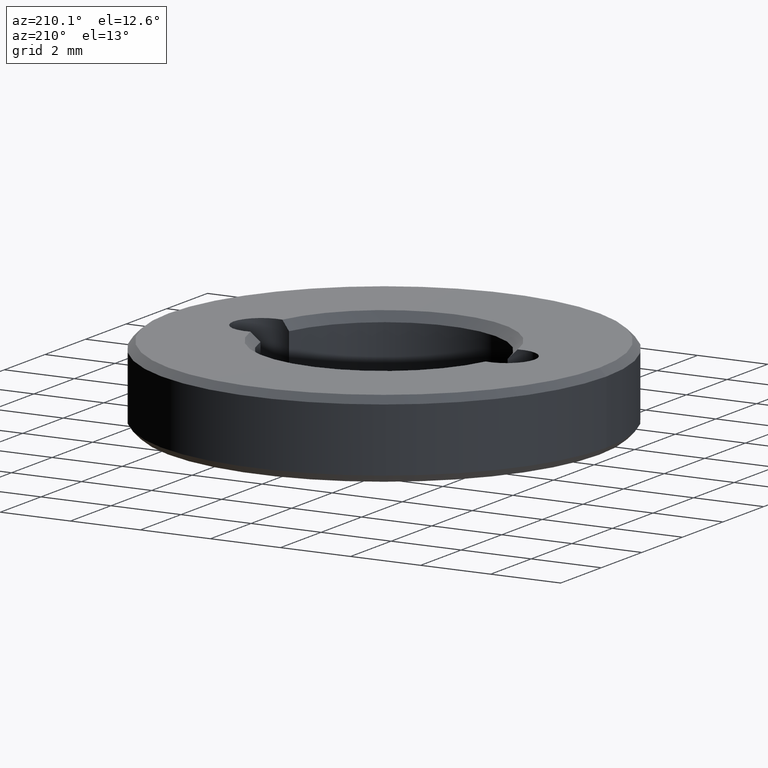
[diagram: clean part render]
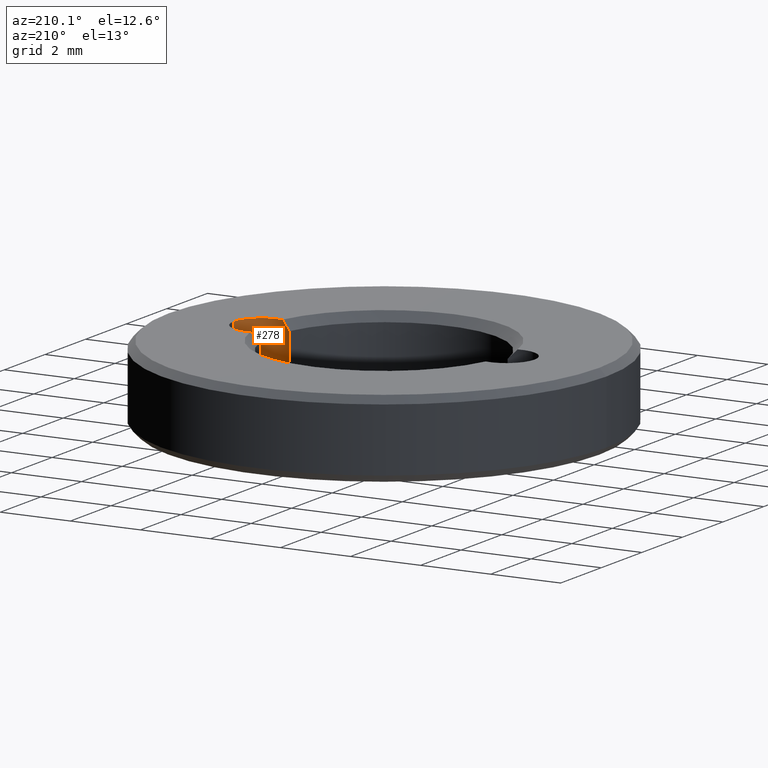
[diagram: same view with one face highlighted and labeled with its STEP entity id]
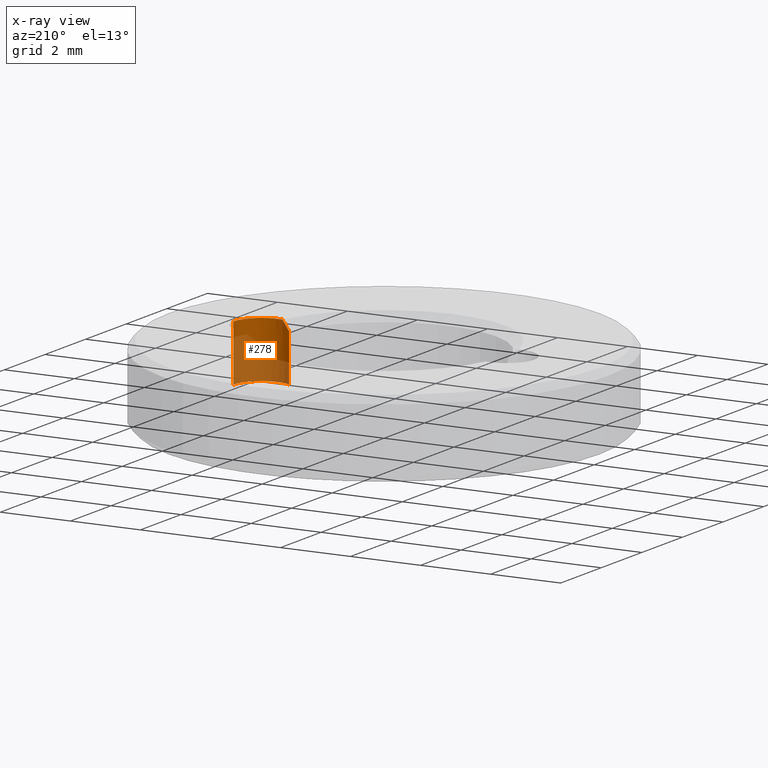
[diagram: x-ray of the same camera — body ghosted, the highlighted face saturated]
A machine part, auxiliary view. The second image highlights one B-rep face of the part: STEP entity #278.
The next image is the same camera in x-ray: the body ghosted, the highlighted face saturated — about 53% of this face is hidden behind the body in this view.
In plain terms, the highlighted cylindrical surface (edge-blend (fillet) strip) has radius 0.8 mm, axis along (-0, -0, 1).
Its self-contained STEP definition (entity closure, byte-faithful):
#27 = AXIS2_PLACEMENT_3D ( 'NONE', #255, #640, #263 ) ;
#39 = EDGE_CURVE ( 'NONE', #627, #196, #271, .T. ) ;
#60 = VECTOR ( 'NONE', #522, 1000.000000000000000 ) ;
#64 = CARTESIAN_POINT ( 'NONE',  ( 3.276081714236735998, -0.7726218221810703390, 2.115952463718425491 ) ) ;
#96 = VERTEX_POINT ( 'NONE', #198 ) ;
#97 = CARTESIAN_POINT ( 'NONE',  ( 3.121428571428571441, -0.7047578828714075039, 1.400000000000000133 ) ) ;
#115 = CARTESIAN_POINT ( 'NONE',  ( 3.500000000000000000, 4.286263797015736595E-16, -1.662741699796954853 ) ) ;
#149 = DIRECTION ( 'NONE',  ( -1.000000000000000000, 0.000000000000000000, 0.000000000000000000 ) ) ;
#151 = ORIENTED_EDGE ( 'NONE', *, *, #655, .F. ) ;
#167 = EDGE_CURVE ( 'NONE', #521, #96, #222, .T. ) ;
#169 = AXIS2_PLACEMENT_3D ( 'NONE', #309, #427, #149 ) ;
#187 = CARTESIAN_POINT ( 'NONE',  ( 4.300000000000000711, 4.286263797015736595E-16, 2.200000000000000178 ) ) ;
#196 = VERTEX_POINT ( 'NONE', #629 ) ;
#198 = CARTESIAN_POINT ( 'NONE',  ( 3.121428571428571441, -0.7047578828714075039, 0.6000000000000003109 ) ) ;
#208 = EDGE_LOOP ( 'NONE', ( #676, #370, #151, #615, #293 ) ) ;
#222 = CIRCLE ( 'NONE', #27, 0.8000000000000008216 ) ;
#246 = LINE ( 'NONE', #97, #542 ) ;
#255 = CARTESIAN_POINT ( 'NONE',  ( 3.500000000000000000, 4.286263797015736595E-16, 0.6000000000000003109 ) ) ;
#263 = DIRECTION ( 'NONE',  ( 1.000000000000000000, 0.000000000000000000, 0.000000000000000000 ) ) ;
#267 = DIRECTION ( 'NONE',  ( -0.000000000000000000, -0.000000000000000000, 1.000000000000000000 ) ) ;
#271 = B_SPLINE_CURVE_WITH_KNOTS ( 'NONE', 3,
 ( #516, #619, #64, #512 ),
 .UNSPECIFIED., .F., .F.,
 ( 4, 4 ),
 ( 2.863821279594674527E-07, 0.0003548938811569430979 ),
 .UNSPECIFIED. ) ;
#278 = ADVANCED_FACE ( 'NONE', ( #483 ), #549, .F. ) ;
#293 = ORIENTED_EDGE ( 'NONE', *, *, #616, .T. ) ;
#306 = LINE ( 'NONE', #515, #60 ) ;
#309 = CARTESIAN_POINT ( 'NONE',  ( 3.500000000000000000, 4.286263797015736595E-16, 2.200000000000000178 ) ) ;
#370 = ORIENTED_EDGE ( 'NONE', *, *, #167, .T. ) ;
#427 = DIRECTION ( 'NONE',  ( 0.000000000000000000, 0.000000000000000000, 1.000000000000000000 ) ) ;
#443 = CIRCLE ( 'NONE', #169, 0.8000000000000008216 ) ;
#468 = VERTEX_POINT ( 'NONE', #187 ) ;
#483 = FACE_OUTER_BOUND ( 'NONE', #208, .T. ) ;
#512 = CARTESIAN_POINT ( 'NONE',  ( 3.358928571428574816, -0.7874635560080339713, 2.200000000000000178 ) ) ;
#515 = CARTESIAN_POINT ( 'NONE',  ( 4.300000000000000711, 4.286263797015736595E-16, -1.662741699796954853 ) ) ;
#516 = CARTESIAN_POINT ( 'NONE',  ( 3.121428571428571441, -0.7047578828714076149, 1.949999999999999956 ) ) ;
#521 = VERTEX_POINT ( 'NONE', #606 ) ;
#522 = DIRECTION ( 'NONE',  ( -0.000000000000000000, -0.000000000000000000, 1.000000000000000000 ) ) ;
#525 = DIRECTION ( 'NONE',  ( 0.000000000000000000, 0.000000000000000000, -1.000000000000000000 ) ) ;
#542 = VECTOR ( 'NONE', #525, 1000.000000000000000 ) ;
#546 = DIRECTION ( 'NONE',  ( 1.000000000000000000, 0.000000000000000000, 0.000000000000000000 ) ) ;
#549 = CYLINDRICAL_SURFACE ( 'NONE', #668, 0.8000000000000008216 ) ;
#606 = CARTESIAN_POINT ( 'NONE',  ( 4.300000000000000711, 4.286263797015736595E-16, 0.6000000000000003109 ) ) ;
#615 = ORIENTED_EDGE ( 'NONE', *, *, #39, .T. ) ;
#616 = EDGE_CURVE ( 'NONE', #196, #468, #443, .T. ) ;
#619 = CARTESIAN_POINT ( 'NONE',  ( 3.196902438309962236, -0.7452998197543061476, 2.032549541901520040 ) ) ;
#627 = VERTEX_POINT ( 'NONE', #697 ) ;
#629 = CARTESIAN_POINT ( 'NONE',  ( 3.358928571428574816, -0.7874635560080339713, 2.200000000000000178 ) ) ;
#640 = DIRECTION ( 'NONE',  ( -0.000000000000000000, -0.000000000000000000, -1.000000000000000000 ) ) ;
#652 = EDGE_CURVE ( 'NONE', #521, #468, #306, .T. ) ;
#655 = EDGE_CURVE ( 'NONE', #627, #96, #246, .T. ) ;
#668 = AXIS2_PLACEMENT_3D ( 'NONE', #115, #267, #546 ) ;
#676 = ORIENTED_EDGE ( 'NONE', *, *, #652, .F. ) ;
#697 = CARTESIAN_POINT ( 'NONE',  ( 3.121428571428571441, -0.7047578828714076149, 1.949999999999999956 ) ) ;